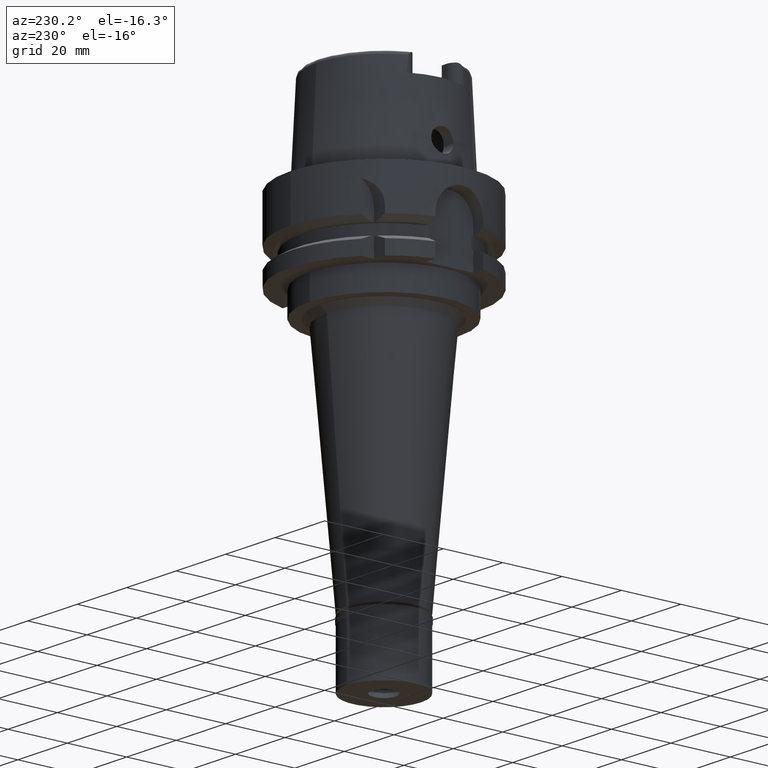
[diagram: clean part render]
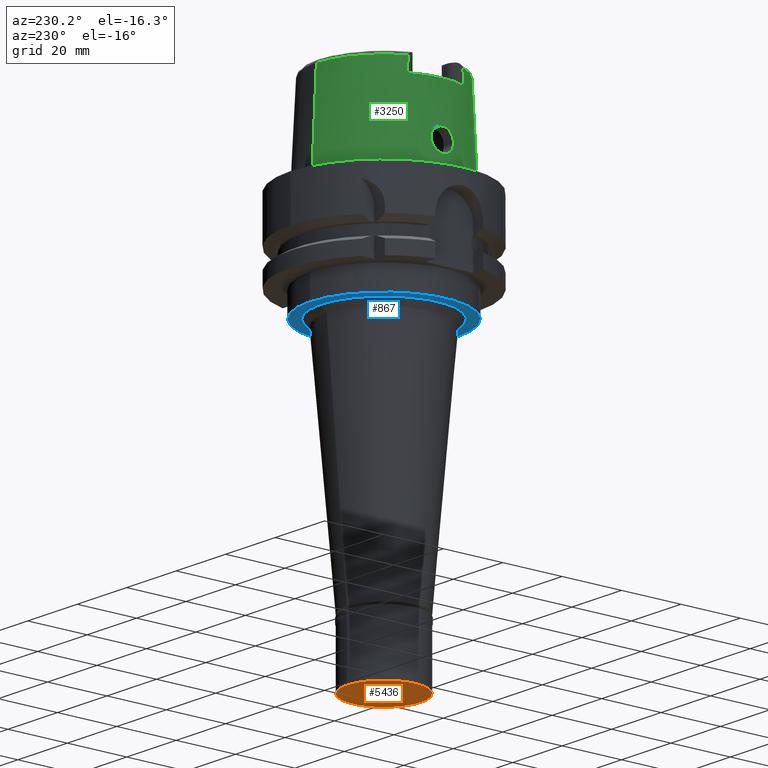
[diagram: same view with three faces highlighted in distinct colors, each labeled with its STEP entity id]
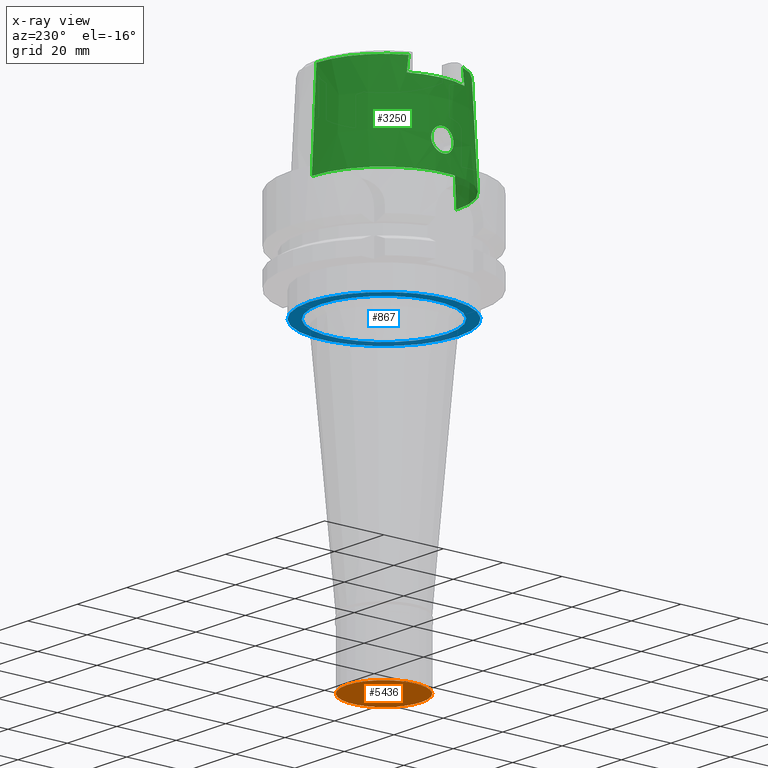
[diagram: x-ray of the same camera — body ghosted, the three highlighted faces saturated]
A machine part, auxiliary view with three faces highlighted in distinct colors.
The next image is the same camera in x-ray (body ghosted, the three faces saturated) — at least one of them is partly hidden behind the body in this view.
Their STEP definitions:

[orange] entity #5436 — the highlighted planar face has unit normal (0, 0, -1).
#112 = CARTESIAN_POINT ( 'NONE',  ( 0.0000000000000000000, 0.0000000000000000000, -20.50000000000000000 ) ) ;
#236 = ORIENTED_EDGE ( 'NONE', *, *, #1042, .F. ) ;
#251 = DIRECTION ( 'NONE',  ( 0.0000000000000000000, 0.0000000000000000000, -1.000000000000000000 ) ) ;
#304 = CIRCLE ( 'NONE', #3399, 12.50000000000000000 ) ;
#397 = AXIS2_PLACEMENT_3D ( 'NONE', #112, #3541, #5161 ) ;
#496 = CARTESIAN_POINT ( 'NONE',  ( 0.0000000000000000000, 4.050000000000999911, -20.50000000000000000 ) ) ;
#613 = DIRECTION ( 'NONE',  ( 0.0000000000000000000, 0.0000000000000000000, -1.000000000000000000 ) ) ;
#644 = ORIENTED_EDGE ( 'NONE', *, *, #1108, .F. ) ;
#669 = CIRCLE ( 'NONE', #397, 4.050000000000999911 ) ;
#857 = CARTESIAN_POINT ( 'NONE',  ( 0.0000000000000000000, -4.050000000000999911, -20.50000000000000000 ) ) ;
#977 = CARTESIAN_POINT ( 'NONE',  ( 0.0000000000000000000, 0.0000000000000000000, -20.50000000000000000 ) ) ;
#1036 = EDGE_CURVE ( 'NONE', #4117, #3602, #304, .T. ) ;
#1042 = EDGE_CURVE ( 'NONE', #1720, #3668, #669, .T. ) ;
#1062 = CARTESIAN_POINT ( 'NONE',  ( 0.0000000000000000000, 0.0000000000000000000, -20.50000000000000000 ) ) ;
#1081 = ORIENTED_EDGE ( 'NONE', *, *, #1036, .F. ) ;
#1088 = DIRECTION ( 'NONE',  ( 0.0000000000000000000, -1.000000000000000000, 0.0000000000000000000 ) ) ;
#1108 = EDGE_CURVE ( 'NONE', #3668, #1720, #5051, .T. ) ;
#1702 = AXIS2_PLACEMENT_3D ( 'NONE', #4442, #251, #5299 ) ;
#1708 = AXIS2_PLACEMENT_3D ( 'NONE', #3833, #1731, #2560 ) ;
#1720 = VERTEX_POINT ( 'NONE', #857 ) ;
#1731 = DIRECTION ( 'NONE',  ( 0.0000000000000000000, 0.0000000000000000000, 1.000000000000000000 ) ) ;
#2264 = CARTESIAN_POINT ( 'NONE',  ( 0.0000000000000000000, -12.50000000000000000, -20.50000000000000000 ) ) ;
#2560 = DIRECTION ( 'NONE',  ( 0.0000000000000000000, 1.000000000000000000, 0.0000000000000000000 ) ) ;
#2768 = PLANE ( 'NONE',  #1702 ) ;
#2800 = EDGE_LOOP ( 'NONE', ( #644, #236 ) ) ;
#2958 = AXIS2_PLACEMENT_3D ( 'NONE', #1062, #613, #3923 ) ;
#3004 = CARTESIAN_POINT ( 'NONE',  ( 0.0000000000000000000, 12.50000000000000000, -20.50000000000000000 ) ) ;
#3269 = FACE_OUTER_BOUND ( 'NONE', #3824, .T. ) ;
#3296 = CIRCLE ( 'NONE', #1708, 12.50000000000000000 ) ;
#3399 = AXIS2_PLACEMENT_3D ( 'NONE', #977, #4853, #1088 ) ;
#3541 = DIRECTION ( 'NONE',  ( 0.0000000000000000000, 0.0000000000000000000, -1.000000000000000000 ) ) ;
#3602 = VERTEX_POINT ( 'NONE', #3004 ) ;
#3668 = VERTEX_POINT ( 'NONE', #496 ) ;
#3824 = EDGE_LOOP ( 'NONE', ( #3947, #1081 ) ) ;
#3833 = CARTESIAN_POINT ( 'NONE',  ( 0.0000000000000000000, 0.0000000000000000000, -20.50000000000000000 ) ) ;
#3923 = DIRECTION ( 'NONE',  ( 0.0000000000000000000, 1.000000000000000000, 0.0000000000000000000 ) ) ;
#3947 = ORIENTED_EDGE ( 'NONE', *, *, #4542, .F. ) ;
#4117 = VERTEX_POINT ( 'NONE', #2264 ) ;
#4442 = CARTESIAN_POINT ( 'NONE',  ( 0.0000000000000000000, 0.0000000000000000000, -20.50000000000000000 ) ) ;
#4542 = EDGE_CURVE ( 'NONE', #3602, #4117, #3296, .T. ) ;
#4849 = FACE_BOUND ( 'NONE', #2800, .T. ) ;
#4853 = DIRECTION ( 'NONE',  ( 0.0000000000000000000, 0.0000000000000000000, 1.000000000000000000 ) ) ;
#5051 = CIRCLE ( 'NONE', #2958, 4.050000000000999911 ) ;
#5161 = DIRECTION ( 'NONE',  ( 0.0000000000000000000, -1.000000000000000000, 0.0000000000000000000 ) ) ;
#5299 = DIRECTION ( 'NONE',  ( 0.0000000000000000000, -1.000000000000000000, 0.0000000000000000000 ) ) ;
#5436 = ADVANCED_FACE ( 'NONE', ( #3269, #4849 ), #2768, .T. ) ;

[blue] entity #867 — the highlighted planar face has unit normal (0, 0, 1).
#6 = FACE_BOUND ( 'NONE', #5177, .T. ) ;
#174 = CARTESIAN_POINT ( 'NONE',  ( 0.0000000000000000000, -21.29786915595999730, -34.00000000000000000 ) ) ;
#524 = EDGE_LOOP ( 'NONE', ( #4132, #1740 ) ) ;
#635 = AXIS2_PLACEMENT_3D ( 'NONE', #2496, #2468, #4150 ) ;
#837 = AXIS2_PLACEMENT_3D ( 'NONE', #5411, #4519, #2014 ) ;
#838 = EDGE_CURVE ( 'NONE', #4031, #5400, #2237, .T. ) ;
#867 = ADVANCED_FACE ( 'NONE', ( #2082, #6 ), #3808, .F. ) ;
#1487 = DIRECTION ( 'NONE',  ( 0.0000000000000000000, -1.000000000000000000, 0.0000000000000000000 ) ) ;
#1511 = DIRECTION ( 'NONE',  ( 0.0000000000000000000, 0.0000000000000000000, 1.000000000000000000 ) ) ;
#1621 = EDGE_CURVE ( 'NONE', #5400, #4031, #3751, .T. ) ;
#1715 = DIRECTION ( 'NONE',  ( 1.000000000000000000, 0.0000000000000000000, 0.0000000000000000000 ) ) ;
#1739 = CARTESIAN_POINT ( 'NONE',  ( 0.0000000000000000000, 0.0000000000000000000, -34.00000000000000000 ) ) ;
#1740 = ORIENTED_EDGE ( 'NONE', *, *, #1621, .F. ) ;
#1764 = DIRECTION ( 'NONE',  ( 0.0000000000000000000, 1.000000000000000000, 0.0000000000000000000 ) ) ;
#2014 = DIRECTION ( 'NONE',  ( 0.0000000000000000000, 1.000000000000000000, 0.0000000000000000000 ) ) ;
#2082 = FACE_OUTER_BOUND ( 'NONE', #524, .T. ) ;
#2155 = AXIS2_PLACEMENT_3D ( 'NONE', #5102, #4254, #1764 ) ;
#2237 = CIRCLE ( 'NONE', #2155, 25.00000000000000000 ) ;
#2304 = CIRCLE ( 'NONE', #635, 21.29786915595999730 ) ;
#2468 = DIRECTION ( 'NONE',  ( 0.0000000000000000000, 0.0000000000000000000, -1.000000000000000000 ) ) ;
#2496 = CARTESIAN_POINT ( 'NONE',  ( 0.0000000000000000000, 0.0000000000000000000, -34.00000000000000000 ) ) ;
#2531 = VERTEX_POINT ( 'NONE', #174 ) ;
#2690 = EDGE_CURVE ( 'NONE', #2531, #4790, #2304, .T. ) ;
#2861 = CIRCLE ( 'NONE', #837, 21.29786915595999730 ) ;
#3098 = CARTESIAN_POINT ( 'NONE',  ( 0.0000000000000000000, 25.00000000000000000, -34.00000000000000000 ) ) ;
#3436 = DIRECTION ( 'NONE',  ( 0.0000000000000000000, 0.0000000000000000000, 1.000000000000000000 ) ) ;
#3558 = ORIENTED_EDGE ( 'NONE', *, *, #2690, .F. ) ;
#3615 = CARTESIAN_POINT ( 'NONE',  ( 0.0000000000000000000, 0.0000000000000000000, -34.00000000000000000 ) ) ;
#3751 = CIRCLE ( 'NONE', #4455, 25.00000000000000000 ) ;
#3808 = PLANE ( 'NONE',  #5327 ) ;
#4004 = CARTESIAN_POINT ( 'NONE',  ( 0.0000000000000000000, -25.00000000000000000, -34.00000000000000000 ) ) ;
#4031 = VERTEX_POINT ( 'NONE', #3098 ) ;
#4132 = ORIENTED_EDGE ( 'NONE', *, *, #838, .F. ) ;
#4150 = DIRECTION ( 'NONE',  ( 0.0000000000000000000, -1.000000000000000000, 0.0000000000000000000 ) ) ;
#4237 = ORIENTED_EDGE ( 'NONE', *, *, #4303, .F. ) ;
#4254 = DIRECTION ( 'NONE',  ( 0.0000000000000000000, 0.0000000000000000000, 1.000000000000000000 ) ) ;
#4303 = EDGE_CURVE ( 'NONE', #4790, #2531, #2861, .T. ) ;
#4383 = CARTESIAN_POINT ( 'NONE',  ( 0.0000000000000000000, 21.29786915595999730, -34.00000000000000000 ) ) ;
#4455 = AXIS2_PLACEMENT_3D ( 'NONE', #3615, #1511, #1487 ) ;
#4519 = DIRECTION ( 'NONE',  ( 0.0000000000000000000, 0.0000000000000000000, -1.000000000000000000 ) ) ;
#4790 = VERTEX_POINT ( 'NONE', #4383 ) ;
#5102 = CARTESIAN_POINT ( 'NONE',  ( 0.0000000000000000000, 0.0000000000000000000, -34.00000000000000000 ) ) ;
#5177 = EDGE_LOOP ( 'NONE', ( #4237, #3558 ) ) ;
#5327 = AXIS2_PLACEMENT_3D ( 'NONE', #1739, #3436, #1715 ) ;
#5400 = VERTEX_POINT ( 'NONE', #4004 ) ;
#5411 = CARTESIAN_POINT ( 'NONE',  ( 0.0000000000000000000, 0.0000000000000000000, -34.00000000000000000 ) ) ;

[green] entity #3250 — the highlighted conical surface has half-angle 2.862 deg.
#2 = CARTESIAN_POINT ( 'NONE',  ( -23.68855649572686417, -3.450350392959329326, 7.530746330599932037 ) ) ;
#5 = AXIS2_PLACEMENT_3D ( 'NONE', #2282, #4816, #264 ) ;
#8 = CARTESIAN_POINT ( 'NONE',  ( -20.86979791523000216, 9.115619747633999737, 30.82498808701999948 ) ) ;
#14 = CARTESIAN_POINT ( 'NONE',  ( -23.54014348580859206, 3.448440655340439864, 10.47345738375978463 ) ) ;
#15 = VERTEX_POINT ( 'NONE', #4648 ) ;
#27 = AXIS2_PLACEMENT_3D ( 'NONE', #1420, #5259, #2727 ) ;
#28 = CARTESIAN_POINT ( 'NONE',  ( -23.83804968213770437, -2.730138444230238104, 6.426279370771789345 ) ) ;
#39 = CARTESIAN_POINT ( 'NONE',  ( -23.54900849258929796, 3.721295030629335088, 9.478473824203449638 ) ) ;
#55 = CARTESIAN_POINT ( 'NONE',  ( -23.77366573554321150, -3.079179372792101965, 6.858788694553790144 ) ) ;
#64 = CARTESIAN_POINT ( 'NONE',  ( -23.58633424706027171, 2.612815130266215924, 11.68996907074316205 ) ) ;
#89 = CARTESIAN_POINT ( 'NONE',  ( -23.98860805336523327, 1.516805413282820370, 5.570264418987137311 ) ) ;
#120 = CARTESIAN_POINT ( 'NONE',  ( -23.54570811899809257, 3.703929906169442621, 9.598605068417711550 ) ) ;
#160 = CARTESIAN_POINT ( 'NONE',  ( -23.63968782729881468, -1.640295639470448874, 12.37324290434306029 ) ) ;
#189 = CARTESIAN_POINT ( 'NONE',  ( -23.55727397494100828, -3.089636227347550168, 11.12874586897779139 ) ) ;
#227 = CARTESIAN_POINT ( 'NONE',  ( -20.86999859286000003, -9.145656550792999440, 30.58059438467000035 ) ) ;
#244 = ORIENTED_EDGE ( 'NONE', *, *, #2335, .T. ) ;
#264 = DIRECTION ( 'NONE',  ( -0.9164655183265837390, 0.4001136759951928745, 0.0000000000000000000 ) ) ;
#315 = ORIENTED_EDGE ( 'NONE', *, *, #3787, .T. ) ;
#318 = CARTESIAN_POINT ( 'NONE',  ( -23.80252329196896355, -2.931021465767322809, 6.660040252977387887 ) ) ;
#322 = CARTESIAN_POINT ( 'NONE',  ( -23.63991982690483340, 1.634365850957417932, 12.37734992445323634 ) ) ;
#349 = CARTESIAN_POINT ( 'NONE',  ( -23.61798605459056333, 2.072660299223381131, 12.12516543794528268 ) ) ;
#413 = VERTEX_POINT ( 'NONE', #5435 ) ;
#423 = CARTESIAN_POINT ( 'NONE',  ( -23.69823410077493975, -3.412900177728301898, 7.445778019075279808 ) ) ;
#428 = CARTESIAN_POINT ( 'NONE',  ( -20.86974110889999778, 9.111383545098000525, 30.85992740062999928 ) ) ;
#432 = CARTESIAN_POINT ( 'NONE',  ( -23.77928549044682782, 3.051522805574073960, 6.816916783141987679 ) ) ;
#437 = VERTEX_POINT ( 'NONE', #1130 ) ;
#446 = CARTESIAN_POINT ( 'NONE',  ( -23.95646170837702726, -1.853837862012882809, 5.739666730202156231 ) ) ;
#457 = CARTESIAN_POINT ( 'NONE',  ( -23.53979351381236995, 3.461509763711903442, 10.44239227257004643 ) ) ;
#476 = CARTESIAN_POINT ( 'NONE',  ( -23.86590124817917768, -2.555122358245552672, 6.254839336102934411 ) ) ;
#488 = CARTESIAN_POINT ( 'NONE',  ( -23.84694261843706897, 2.674164043355204523, 6.371010975574848523 ) ) ;
#492 = VERTEX_POINT ( 'NONE', #4183 ) ;
#504 = CARTESIAN_POINT ( 'NONE',  ( -23.58283486885746782, -2.667704132461742539, 11.63551429115874036 ) ) ;
#511 = CARTESIAN_POINT ( 'NONE',  ( -23.53850050244912850, 3.633707465304310436, 9.958315797427276905 ) ) ;
#525 = CARTESIAN_POINT ( 'NONE',  ( -23.57177425104814716, -2.847066704537505988, 11.44162680371442420 ) ) ;
#533 = CARTESIAN_POINT ( 'NONE',  ( -23.56555400590840677, 3.749631139604657992, 9.060415933230707708 ) ) ;
#560 = EDGE_CURVE ( 'NONE', #437, #3338, #1625, .T. ) ;
#586 = CARTESIAN_POINT ( 'NONE',  ( -23.62817009328265527, -1.885504390004044017, 12.24383666416988170 ) ) ;
#652 = CARTESIAN_POINT ( 'NONE',  ( -24.05252611746999492, 0.4682087623268842425, 5.250000000000005329 ) ) ;
#656 = CARTESIAN_POINT ( 'NONE',  ( -20.86999859286000003, -9.150003160549998071, 30.54568941691999839 ) ) ;
#686 = CARTESIAN_POINT ( 'NONE',  ( -20.87000000000000099, 9.332993010319471594, 29.07609872775757864 ) ) ;
#695 = DIRECTION ( 'NONE',  ( 0.0000000000000000000, 0.0000000000000000000, -1.000000000000000000 ) ) ;
#707 = CARTESIAN_POINT ( 'NONE',  ( -23.93747828835355662, -2.023758500835633800, 5.842887484415648203 ) ) ;
#722 = CONICAL_SURFACE ( 'NONE', #3207, 23.54351105844999736, 0.04996004983832824653 ) ;
#731 = CARTESIAN_POINT ( 'NONE',  ( -23.98780141253777387, -1.529850488963499178, 5.574348390456109748 ) ) ;
#737 = CARTESIAN_POINT ( 'NONE',  ( -23.64876190097339048, 1.422569725464330359, 12.46970655259701921 ) ) ;
#765 = CARTESIAN_POINT ( 'NONE',  ( -23.61879524018712218, 2.057754103152230396, 12.13500044361474473 ) ) ;
#789 = CARTESIAN_POINT ( 'NONE',  ( 0.0000000000000000000, 0.0000000000000000000, 26.00000000000000000 ) ) ;
#820 = CARTESIAN_POINT ( 'NONE',  ( -23.63217384775390073, 1.797799039427432799, 12.29153530674953743 ) ) ;
#844 = CARTESIAN_POINT ( 'NONE',  ( -24.00084008237205069, -1.365466169006860353, 5.507400335312493844 ) ) ;
#850 = CARTESIAN_POINT ( 'NONE',  ( -20.86998014063999918, 9.137000168784000564, 30.65036215718999912 ) ) ;
#853 = LINE ( 'NONE', #4568, #5409 ) ;
#855 = CARTESIAN_POINT ( 'NONE',  ( -23.75810190251952747, 3.153611506438460221, 6.970771463084854958 ) ) ;
#875 = CARTESIAN_POINT ( 'NONE',  ( -23.57093098231326067, 2.851320387652085397, 11.45124733492395919 ) ) ;
#891 = CARTESIAN_POINT ( 'NONE',  ( -23.57120107787324059, -3.749755776624165815, 8.948568822382817700 ) ) ;
#903 = CARTESIAN_POINT ( 'NONE',  ( -23.59513519483810384, 3.730063048703614825, 8.542738687284348487 ) ) ;
#922 = CARTESIAN_POINT ( 'NONE',  ( -23.55631789223333428, -3.749672740654974135, 9.242517987140685065 ) ) ;
#935 = CARTESIAN_POINT ( 'NONE',  ( -23.98100747839815483, 1.604224121601369069, 5.609676872079137233 ) ) ;
#952 = CARTESIAN_POINT ( 'NONE',  ( -23.62277834053311665, -1.989116349039149023, 12.18120550145415670 ) ) ;
#959 = CARTESIAN_POINT ( 'NONE',  ( -23.65218889149405967, 3.578284045977731420, 7.876407930200151064 ) ) ;
#999 = CARTESIAN_POINT ( 'NONE',  ( -23.53967805942447100, -3.465942326589053657, 10.43170616132068851 ) ) ;
#1002 = CARTESIAN_POINT ( 'NONE',  ( -20.86979784206000232, -9.115619992199000876, 30.82498881521999934 ) ) ;
#1087 = DIRECTION ( 'NONE',  ( 0.0000000000000000000, 0.0000000000000000000, -1.000000000000000000 ) ) ;
#1130 = CARTESIAN_POINT ( 'NONE',  ( -23.67751368057999883, 0.0000000000000000000, 12.75000000000000000 ) ) ;
#1176 = CARTESIAN_POINT ( 'NONE',  ( -23.97821485496977090, -1.637234158120941085, 5.624069072311930206 ) ) ;
#1259 = CARTESIAN_POINT ( 'NONE',  ( -23.53993040577220697, 3.456309141059284329, 10.45481010227199903 ) ) ;
#1279 = CARTESIAN_POINT ( 'NONE',  ( -23.99856816874137166, -1.394885509442251870, 5.519045433788947186 ) ) ;
#1292 = CARTESIAN_POINT ( 'NONE',  ( -23.84336415999423764, 2.695641915487723139, 6.393037920339570412 ) ) ;
#1305 = CARTESIAN_POINT ( 'NONE',  ( -23.69164711139074342, -3.438544630161922910, 7.503368978167282322 ) ) ;
#1313 = CARTESIAN_POINT ( 'NONE',  ( -23.81480627636089764, 2.861180136208510305, 6.575142443498487310 ) ) ;
#1327 = CARTESIAN_POINT ( 'NONE',  ( -23.88957874108728419, -2.394968960503439881, 6.113755465787070520 ) ) ;
#1336 = CARTESIAN_POINT ( 'NONE',  ( -23.56097796872718675, 3.013422431557879033, 11.24541844973285620 ) ) ;
#1340 = B_SPLINE_CURVE_WITH_KNOTS ( 'NONE', 3,
 ( #428, #8, #2934, #850, #2523, #1686 ),
 .UNSPECIFIED., .F., .F.,
 ( 4, 1, 1, 4 ),
 ( 0.0000000000000000000, 0.3333333333333000081, 0.6666666666667000474, 1.000000000000000000 ),
 .UNSPECIFIED. ) ;
#1355 = CARTESIAN_POINT ( 'NONE',  ( -23.54167622164519003, -3.387205666513867452, 10.62142259279032430 ) ) ;
#1366 = CARTESIAN_POINT ( 'NONE',  ( -23.66129350525020314, 3.548529442283025581, 7.784314626029999573 ) ) ;
#1383 = CARTESIAN_POINT ( 'NONE',  ( -23.64574074789039670, -1.497428109160985787, 12.43819703325460857 ) ) ;
#1392 = CARTESIAN_POINT ( 'NONE',  ( -23.99475744535108745, 1.442563801230068554, 5.538561806632706919 ) ) ;
#1408 = CARTESIAN_POINT ( 'NONE',  ( -23.58328928351684084, -2.660386235629019325, 11.64289685430886223 ) ) ;
#1409 = DIRECTION ( 'NONE',  ( 0.0000000000000000000, -1.000000000000000000, 0.0000000000000000000 ) ) ;
#1420 = CARTESIAN_POINT ( 'NONE',  ( 0.0000000000000000000, 0.0000000000000000000, -7.389644451905000534E-13 ) ) ;
#1433 = CARTESIAN_POINT ( 'NONE',  ( -23.64333711421577533, -1.554903091159627104, 12.41258936274033076 ) ) ;
#1471 = FACE_BOUND ( 'NONE', #4684, .T. ) ;
#1478 = CARTESIAN_POINT ( 'NONE',  ( -24.03360035032514119, 0.9587416555076208047, 5.338922568945038805 ) ) ;
#1509 = CARTESIAN_POINT ( 'NONE',  ( 0.0000000000000000000, 22.77198729362000051, 30.85992712280000205 ) ) ;
#1539 = VERTEX_POINT ( 'NONE', #5292 ) ;
#1560 = CARTESIAN_POINT ( 'NONE',  ( -23.93346570588322564, -2.057731046173905565, 5.864986635515452740 ) ) ;
#1579 = CARTESIAN_POINT ( 'NONE',  ( -23.78102517926954462, -3.042785094255858525, 6.807340126549617842 ) ) ;
#1583 = CARTESIAN_POINT ( 'NONE',  ( -23.62000083421527918, 2.035445434004911736, 12.14960492250300206 ) ) ;
#1625 = B_SPLINE_CURVE_WITH_KNOTS ( 'NONE', 3,
 ( #2834, #4545, #1981, #5370, #2061, #3667, #3766, #3740, #4510, #2031, #737, #4106, #2910, #322, #820, #2004, #2447, #3688, #1583, #765, #349, #3711, #5141, #2577, #3419, #2631, #5057, #64, #3789, #4645, #875, #1336, #3389, #1771, #4313, #4290, #2223, #14, #1259, #457, #2610, #2940, #511, #120, #39, #2550, #3896, #3846, #533, #3466, #1722, #903, #4263, #4624, #959, #1366, #1692, #2169, #2138, #3058, #1744, #4234, #1803, #3817, #5084, #2194, #5022, #855, #2528, #4210, #4726, #432, #3869, #1313, #2116, #3028, #1292, #488, #2970, #2995, #4668, #3441, #5108, #4699, #935, #89, #2661, #5166, #1392, #2748, #1478, #652, #3580 ),
 .UNSPECIFIED., .F., .F.,
 ( 4, 2, 2, 1, 1, 1, 2, 2, 2, 2, 1, 1, 2, 2, 2, 1, 1, 2, 2, 2, 2, 1, 1, 1, 2, 2, 2, 2, 1, 2, 2, 2, 2, 1, 1, 1, 2, 2, 2, 2, 1, 1, 2, 2, 2, 1, 1, 2, 2, 2, 2, 1, 1, 1, 2, 2, 4 ),
 ( 0.0000000000000000000, 0.06250000000000180411, 0.09375000000000267841, 0.1093750000000030947, 0.1171875000000033168, 0.1210937500000034417, 0.1230468750000035943, 0.1250000000000037470, 0.1562500000000084377, 0.1718750000000107414, 0.1796875000000118794, 0.1835937500000125178, 0.1855468750000128231, 0.1875000000000131284, 0.2187500000000151823, 0.2343750000000162370, 0.2421875000000167366, 0.2460937500000169864, 0.2500000000000172085, 0.3125000000000199840, 0.3437500000000211497, 0.3593750000000219269, 0.3671875000000223155, 0.3710937500000223155, 0.3730468750000224820, 0.3750000000000226485, 0.4375000000000212053, 0.4687500000000202616, 0.4843750000000199840, 0.4921875000000198730, 0.5000000000000197620, 0.5625000000000199840, 0.5937500000000198730, 0.6093750000000196509, 0.6171875000000194289, 0.6210937500000192069, 0.6230468750000192069, 0.6250000000000192069, 0.6562500000000169864, 0.6718750000000159872, 0.6796875000000155431, 0.6835937500000154321, 0.6855468750000154321, 0.6875000000000155431, 0.7187500000000152101, 0.7343750000000150990, 0.7421875000000150990, 0.7460937500000150990, 0.7500000000000150990, 0.8125000000000134337, 0.8437500000000126565, 0.8593750000000123235, 0.8671875000000121014, 0.8710937500000118794, 0.8730468750000117684, 0.8750000000000115463, 1.000000000000000000 ),
 .UNSPECIFIED. ) ;
#1681 = VERTEX_POINT ( 'NONE', #1904 ) ;
#1682 = CARTESIAN_POINT ( 'NONE',  ( -24.05252611747000913, -0.2332103147720371306, 5.249999999999995559 ) ) ;
#1686 = CARTESIAN_POINT ( 'NONE',  ( -20.87000040551000168, 9.149999089200999691, 30.54560915661999942 ) ) ;
#1692 = CARTESIAN_POINT ( 'NONE',  ( -23.67256934594223239, 3.509037656597154609, 7.676726614362176626 ) ) ;
#1710 = ORIENTED_EDGE ( 'NONE', *, *, #2533, .F. ) ;
#1712 = CARTESIAN_POINT ( 'NONE',  ( -23.58453728877801936, -3.739856244324455403, 8.718110060412866957 ) ) ;
#1722 = CARTESIAN_POINT ( 'NONE',  ( -23.57982250564248972, 3.750067514026123039, 8.777281901709105938 ) ) ;
#1736 = CARTESIAN_POINT ( 'NONE',  ( -23.96211499764661568, -1.799536070464387905, 5.709421591823511832 ) ) ;
#1744 = CARTESIAN_POINT ( 'NONE',  ( -23.68361486062016397, 3.468774132774364194, 7.575167304624402576 ) ) ;
#1771 = CARTESIAN_POINT ( 'NONE',  ( -23.54701787177276273, 3.273004262377924523, 10.83388854690103820 ) ) ;
#1792 = CARTESIAN_POINT ( 'NONE',  ( -23.67751368057999883, 0.0000000000000000000, 12.75000000000000000 ) ) ;
#1803 = CARTESIAN_POINT ( 'NONE',  ( -23.70700908735710755, 3.379377894051271536, 7.369840515917825741 ) ) ;
#1820 = CARTESIAN_POINT ( 'NONE',  ( -23.53925035809209731, -3.484397382970594759, 10.38632955577066674 ) ) ;
#1835 = ORIENTED_EDGE ( 'NONE', *, *, #5140, .F. ) ;
#1845 = CARTESIAN_POINT ( 'NONE',  ( -23.53847087989570142, -3.572101077236516264, 10.14300631106197415 ) ) ;
#1846 = CARTESIAN_POINT ( 'NONE',  ( 0.0000000000000000000, 0.0000000000000000000, 15.42996356139999925 ) ) ;
#1854 = CARTESIAN_POINT ( 'NONE',  ( -20.86999931535000385, -9.702216590572000143, 26.00000000000000000 ) ) ;
#1860 = B_SPLINE_CURVE_WITH_KNOTS ( 'NONE', 3,
 ( #5248, #227, #2741, #4332, #1002, #3486 ),
 .UNSPECIFIED., .F., .F.,
 ( 4, 1, 1, 4 ),
 ( 0.0000000000000000000, 0.3333333333333000081, 0.6666666666667000474, 1.000000000000000000 ),
 .UNSPECIFIED. ) ;
#1864 = VERTEX_POINT ( 'NONE', #5168 ) ;
#1904 = CARTESIAN_POINT ( 'NONE',  ( -20.86974104061000190, -9.111384044299001062, 30.85992600358999738 ) ) ;
#1944 = CARTESIAN_POINT ( 'NONE',  ( -20.87000000000000099, -9.517135092919289718, 27.56041024058491118 ) ) ;
#1975 = CARTESIAN_POINT ( 'NONE',  ( -24.03376450813277287, -0.8302585185789148614, 5.341039448942981771 ) ) ;
#1981 = CARTESIAN_POINT ( 'NONE',  ( -23.67506692396758439, 0.4637167558492616415, 12.72933692533884731 ) ) ;
#1983 = ORIENTED_EDGE ( 'NONE', *, *, #2309, .F. ) ;
#2001 = CARTESIAN_POINT ( 'NONE',  ( -23.94298929834559786, -1.976175609908125352, 5.812675870300883396 ) ) ;
#2004 = CARTESIAN_POINT ( 'NONE',  ( -23.62941725488066425, 1.853914894446656803, 12.26036247288308445 ) ) ;
#2031 = CARTESIAN_POINT ( 'NONE',  ( -23.64936403248347574, 1.407275569540477056, 12.47593780961583221 ) ) ;
#2061 = CARTESIAN_POINT ( 'NONE',  ( -23.66466820836483720, 0.9480137377314733493, 12.63043733667793411 ) ) ;
#2116 = CARTESIAN_POINT ( 'NONE',  ( -23.82549564032062506, 2.800913594571911691, 6.505203384462354244 ) ) ;
#2128 = CARTESIAN_POINT ( 'NONE',  ( -24.04783571513569385, -0.4716470343275623867, 5.271818786262217671 ) ) ;
#2138 = CARTESIAN_POINT ( 'NONE',  ( -23.68089203929594433, 3.478829521360184529, 7.599887913859575406 ) ) ;
#2169 = CARTESIAN_POINT ( 'NONE',  ( -23.67837071411571515, 3.488075904215307332, 7.622935984919365637 ) ) ;
#2185 = B_SPLINE_CURVE_WITH_KNOTS ( 'NONE', 3,
 ( #4610, #1682, #2128, #1975, #3432, #4248, #2962, #4223, #844, #1279, #2542, #731, #1176, #1736, #446, #3662, #2001, #707, #3779, #1560, #3838, #4919, #2413, #1327, #3015, #3258, #476, #5366, #5100, #2860, #2518, #28, #2382, #318, #3685, #1579, #55, #3279, #5073, #3410, #4200, #423, #1305, #2, #3376, #5041, #4637, #3804, #1712, #2986, #4658, #891, #3860, #922, #2601, #3942, #2683, #1845, #4766, #4717, #1820, #3074, #5184, #999, #1355, #3485, #189, #4361, #2186, #525, #4686, #3539, #4305, #5212, #504, #1408, #2211, #4283, #5246, #3887, #3919, #3100, #952, #586, #2265, #160, #1433, #1383, #3130, #2239, #4385, #1792 ),
 .UNSPECIFIED., .F., .F.,
 ( 4, 2, 2, 1, 1, 2, 2, 2, 2, 1, 1, 2, 2, 2, 2, 1, 1, 2, 2, 2, 2, 2, 2, 1, 2, 2, 2, 2, 1, 2, 2, 2, 2, 1, 1, 1, 2, 2, 2, 2, 2, 1, 1, 2, 2, 2, 2, 2, 2, 1, 2, 2, 4 ),
 ( 0.0000000000000000000, 0.06249999999999347744, 0.09374999999999024392, 0.1093749999999886480, 0.1171874999999878292, 0.1210937499999873990, 0.1249999999999869826, 0.1562499999999839573, 0.1718749999999824307, 0.1796874999999815981, 0.1835937499999812095, 0.1855468749999809874, 0.1874999999999807931, 0.2187499999999781564, 0.2343749999999770184, 0.2421874999999763522, 0.2460937499999760469, 0.2480468749999759359, 0.2499999999999758526, 0.2812499999999740763, 0.2968749999999732436, 0.3124999999999723554, 0.3437499999999706346, 0.3593749999999697464, 0.3671874999999693023, 0.3749999999999688027, 0.4374999999999652500, 0.4687499999999633071, 0.4843749999999625300, 0.4921874999999621969, 0.4999999999999618083, 0.5624999999999620304, 0.5937499999999622524, 0.6093749999999620304, 0.6171874999999622524, 0.6210937499999620304, 0.6230468749999619194, 0.6249999999999618083, 0.6874999999999674705, 0.7187499999999702460, 0.7343749999999718003, 0.7421874999999725775, 0.7460937499999732436, 0.7480468749999733546, 0.7499999999999734657, 0.7812499999999769074, 0.7968749999999786837, 0.8124999999999804601, 0.8437499999999839018, 0.8593749999999855671, 0.8671874999999864553, 0.8749999999999872324, 1.000000000000000000 ),
 .UNSPECIFIED. ) ;
#2186 = CARTESIAN_POINT ( 'NONE',  ( -23.56910549796511134, -2.890900241431207274, 11.38948586687961573 ) ) ;
#2194 = CARTESIAN_POINT ( 'NONE',  ( -23.74548669685673730, 3.212405278429698807, 7.065045546057747927 ) ) ;
#2211 = CARTESIAN_POINT ( 'NONE',  ( -23.58900414614372565, -2.568399165508496562, 11.73511503744624740 ) ) ;
#2223 = CARTESIAN_POINT ( 'NONE',  ( -23.54069486723662763, 3.429604093074821947, 10.51710758013800984 ) ) ;
#2239 = CARTESIAN_POINT ( 'NONE',  ( -23.66770930210666180, -0.9495237184651953433, 12.66633763498284715 ) ) ;
#2257 = EDGE_CURVE ( 'NONE', #2909, #1539, #1340, .T. ) ;
#2265 = CARTESIAN_POINT ( 'NONE',  ( -23.63590703116679492, -1.723181040758277716, 12.33120441851075277 ) ) ;
#2282 = CARTESIAN_POINT ( 'NONE',  ( 0.0000000000000000000, 0.0000000000000000000, 30.85992712280000205 ) ) ;
#2309 = EDGE_CURVE ( 'NONE', #492, #15, #4045, .T. ) ;
#2335 = EDGE_CURVE ( 'NONE', #2909, #2373, #2383, .T. ) ;
#2373 = VERTEX_POINT ( 'NONE', #1509 ) ;
#2382 = CARTESIAN_POINT ( 'NONE',  ( -23.82389824345340301, -2.813305834487396684, 6.517460154692584773 ) ) ;
#2383 = CIRCLE ( 'NONE', #5, 22.77198729362000407 ) ;
#2384 = CARTESIAN_POINT ( 'NONE',  ( -20.87000040551000168, 9.149999089200999691, 30.54560915661999942 ) ) ;
#2413 = CARTESIAN_POINT ( 'NONE',  ( -23.90951355816619994, -2.251041480584769605, 5.998259240893296429 ) ) ;
#2447 = CARTESIAN_POINT ( 'NONE',  ( -23.62502046583643533, 1.940137780693630409, 12.20928050574175749 ) ) ;
#2518 = CARTESIAN_POINT ( 'NONE',  ( -23.85298089870701688, -2.637218653448960559, 6.333984785360399883 ) ) ;
#2523 = CARTESIAN_POINT ( 'NONE',  ( -20.87000040551000168, 9.145652229695999225, 30.58051608323999915 ) ) ;
#2528 = CARTESIAN_POINT ( 'NONE',  ( -23.76110843537001216, 3.139261242085306769, 6.948752512118193003 ) ) ;
#2533 = EDGE_CURVE ( 'NONE', #1539, #1864, #5014, .T. ) ;
#2542 = CARTESIAN_POINT ( 'NONE',  ( -23.99729627407341326, -1.411048636287077107, 5.525572656864369492 ) ) ;
#2550 = CARTESIAN_POINT ( 'NONE',  ( -23.55530580508843030, 3.738557622454173668, 9.298840057469559994 ) ) ;
#2577 = CARTESIAN_POINT ( 'NONE',  ( -23.60596804538357674, 2.288649008141941277, 11.97316702082432727 ) ) ;
#2583 = CIRCLE ( 'NONE', #3301, 22.77198729362000051 ) ;
#2598 = ORIENTED_EDGE ( 'NONE', *, *, #5348, .F. ) ;
#2601 = CARTESIAN_POINT ( 'NONE',  ( -23.54795032193746707, -3.726728752182754789, 9.483762062742966847 ) ) ;
#2610 = CARTESIAN_POINT ( 'NONE',  ( -23.53973866395645942, 3.463642749354777894, 10.43726852335694844 ) ) ;
#2631 = CARTESIAN_POINT ( 'NONE',  ( -23.59335060317420485, 2.500906294507003302, 11.79545910480701743 ) ) ;
#2639 = B_SPLINE_CURVE_WITH_KNOTS ( 'NONE', 3,
 ( #5196, #1944, #3233, #656 ),
 .UNSPECIFIED., .F., .F.,
 ( 4, 4 ),
 ( 0.0000000000000000000, 1.000000000000000000 ),
 .UNSPECIFIED. ) ;
#2661 = CARTESIAN_POINT ( 'NONE',  ( -23.99223591123744015, 1.473417737953618412, 5.551543009066916667 ) ) ;
#2683 = CARTESIAN_POINT ( 'NONE',  ( -23.53933400710885948, -3.626018558687768678, 9.964348248579810274 ) ) ;
#2727 = DIRECTION ( 'NONE',  ( 0.0000000000000000000, 1.000000000000000000, 0.0000000000000000000 ) ) ;
#2741 = CARTESIAN_POINT ( 'NONE',  ( -20.86998097500999805, -9.136997528986000816, 30.65032563407000055 ) ) ;
#2748 = CARTESIAN_POINT ( 'NONE',  ( -23.99515738581214208, 1.437624465033390031, 5.536504739939318576 ) ) ;
#2834 = CARTESIAN_POINT ( 'NONE',  ( -23.67751368057999883, 0.0000000000000000000, 12.75000000000000000 ) ) ;
#2860 = CARTESIAN_POINT ( 'NONE',  ( -23.85411257870118718, -2.630145024456551628, 6.327002802073015353 ) ) ;
#2909 = VERTEX_POINT ( 'NONE', #3226 ) ;
#2910 = CARTESIAN_POINT ( 'NONE',  ( -23.64438541371377411, 1.532003910395872914, 12.42430358831595250 ) ) ;
#2934 = CARTESIAN_POINT ( 'NONE',  ( -20.86989333338000208, 9.124126689042000748, 30.75511924107999917 ) ) ;
#2940 = CARTESIAN_POINT ( 'NONE',  ( -23.53728676371603612, 3.562651700364320106, 10.19724764933897987 ) ) ;
#2962 = CARTESIAN_POINT ( 'NONE',  ( -24.01163167211778315, -1.217836282258121461, 5.452284111518749476 ) ) ;
#2970 = CARTESIAN_POINT ( 'NONE',  ( -23.84848511269515114, 2.664860190769112069, 6.361567375898035337 ) ) ;
#2986 = CARTESIAN_POINT ( 'NONE',  ( -23.57913311665565459, -3.745728662664435937, 8.805507684926382694 ) ) ;
#2995 = CARTESIAN_POINT ( 'NONE',  ( -23.88313561349912817, 2.454459664620678438, 6.151034554040488267 ) ) ;
#3015 = CARTESIAN_POINT ( 'NONE',  ( -23.88257951421882908, -2.443795280051599406, 6.154875096797558065 ) ) ;
#3028 = CARTESIAN_POINT ( 'NONE',  ( -23.83799877289843394, 2.727655428682778549, 6.426276565142946318 ) ) ;
#3034 = AXIS2_PLACEMENT_3D ( 'NONE', #789, #5020, #3336 ) ;
#3058 = CARTESIAN_POINT ( 'NONE',  ( -23.68258070597932274, 3.472606628673525542, 7.584524145406817297 ) ) ;
#3074 = CARTESIAN_POINT ( 'NONE',  ( -23.53944903743410677, -3.475538857237018942, 10.40825844922596843 ) ) ;
#3083 = ORIENTED_EDGE ( 'NONE', *, *, #560, .F. ) ;
#3100 = CARTESIAN_POINT ( 'NONE',  ( -23.61434002016863687, -2.137343269129500456, 12.08185038946264811 ) ) ;
#3130 = CARTESIAN_POINT ( 'NONE',  ( -23.64687499785082281, -1.469739467175905423, 12.45013971467196967 ) ) ;
#3207 = AXIS2_PLACEMENT_3D ( 'NONE', #1846, #1087, #1409 ) ;
#3226 = CARTESIAN_POINT ( 'NONE',  ( -20.86974110889999778, 9.111383545098000525, 30.85992740062999928 ) ) ;
#3233 = CARTESIAN_POINT ( 'NONE',  ( -20.87000000000000099, -9.333063949578622953, 29.07564004622490472 ) ) ;
#3240 = EDGE_CURVE ( 'NONE', #413, #1681, #1860, .T. ) ;
#3250 = ADVANCED_FACE ( 'NONE', ( #3540, #1471 ), #722, .T. ) ;
#3258 = CARTESIAN_POINT ( 'NONE',  ( -23.87154924215293050, -2.517874083617896108, 6.220808953948716358 ) ) ;
#3279 = CARTESIAN_POINT ( 'NONE',  ( -23.75247688665038126, -3.179994171885301313, 7.008853866645744723 ) ) ;
#3301 = AXIS2_PLACEMENT_3D ( 'NONE', #3620, #695, #5353 ) ;
#3332 = ORIENTED_EDGE ( 'NONE', *, *, #4161, .T. ) ;
#3336 = DIRECTION ( 'NONE',  ( -0.9068002397791221636, -0.4215605829967106200, 0.0000000000000000000 ) ) ;
#3338 = VERTEX_POINT ( 'NONE', #4801 ) ;
#3361 = DIRECTION ( 'NONE',  ( -8.032179027593385064E-05, 0.04993928193351242217, -0.9987522523971473776 ) ) ;
#3376 = CARTESIAN_POINT ( 'NONE',  ( -23.65754809391069102, -3.566088188124873604, 7.809427656172730714 ) ) ;
#3389 = CARTESIAN_POINT ( 'NONE',  ( -23.55001240182656019, 3.213465957018842634, 10.93679277013190543 ) ) ;
#3410 = CARTESIAN_POINT ( 'NONE',  ( -23.71825004763110556, -3.331225362884292274, 7.276845018410305954 ) ) ;
#3419 = CARTESIAN_POINT ( 'NONE',  ( -23.59755753211466356, 2.431116186414328695, 11.85586382592043009 ) ) ;
#3432 = CARTESIAN_POINT ( 'NONE',  ( -24.02790150521490276, -0.9499384788487387210, 5.370183118793741883 ) ) ;
#3441 = CARTESIAN_POINT ( 'NONE',  ( -23.94785021105355938, 1.936136058454497544, 5.786113297736380723 ) ) ;
#3466 = CARTESIAN_POINT ( 'NONE',  ( -23.56707887070782448, 3.749991367895448846, 9.029115373000292877 ) ) ;
#3485 = CARTESIAN_POINT ( 'NONE',  ( -23.54630226441305396, -3.287552103195988895, 10.82047937007957294 ) ) ;
#3486 = CARTESIAN_POINT ( 'NONE',  ( -20.86974104061000190, -9.111384044299001062, 30.85992600358999738 ) ) ;
#3520 = ORIENTED_EDGE ( 'NONE', *, *, #2257, .F. ) ;
#3539 = CARTESIAN_POINT ( 'NONE',  ( -23.57822001618236030, -2.742193815967354009, 11.55833520910875123 ) ) ;
#3540 = FACE_OUTER_BOUND ( 'NONE', #4372, .T. ) ;
#3580 = CARTESIAN_POINT ( 'NONE',  ( -24.05252611746999847, 7.219293415727999012E-14, 5.250000000000000000 ) ) ;
#3620 = CARTESIAN_POINT ( 'NONE',  ( 0.0000000000000000000, 0.0000000000000000000, 30.85992712280000205 ) ) ;
#3662 = CARTESIAN_POINT ( 'NONE',  ( -23.94755176922988227, -1.935381427068293858, 5.787867422730672118 ) ) ;
#3667 = CARTESIAN_POINT ( 'NONE',  ( -23.65916300598690469, 1.131583512631368693, 12.57576496425017076 ) ) ;
#3685 = CARTESIAN_POINT ( 'NONE',  ( -23.79537367589782093, -2.969088110286403737, 6.708534476842169525 ) ) ;
#3688 = CARTESIAN_POINT ( 'NONE',  ( -23.62275659638072156, 1.983760325099657384, 12.18265870488912483 ) ) ;
#3711 = CARTESIAN_POINT ( 'NONE',  ( -23.61751856524482562, 2.081228755270007724, 12.11946245286956092 ) ) ;
#3727 = EDGE_CURVE ( 'NONE', #2373, #4130, #853, .T. ) ;
#3740 = CARTESIAN_POINT ( 'NONE',  ( -23.65230061830052222, 1.330755446689140920, 12.50620537749642658 ) ) ;
#3766 = CARTESIAN_POINT ( 'NONE',  ( -23.65618102136552992, 1.223519750505068338, 12.54583135852419495 ) ) ;
#3779 = CARTESIAN_POINT ( 'NONE',  ( -23.93507611393689061, -2.044143431529040544, 5.856110134686432822 ) ) ;
#3787 = EDGE_CURVE ( 'NONE', #3849, #1864, #4253, .T. ) ;
#3789 = CARTESIAN_POINT ( 'NONE',  ( -23.58493054382509868, 2.634790026816673514, 11.66844861691025770 ) ) ;
#3804 = CARTESIAN_POINT ( 'NONE',  ( -23.59610439637909707, -3.723762417162024718, 8.541698652037885253 ) ) ;
#3817 = CARTESIAN_POINT ( 'NONE',  ( -23.72722775101787107, 3.293854948502682234, 7.206456495701663023 ) ) ;
#3838 = CARTESIAN_POINT ( 'NONE',  ( -23.93249533362292425, -2.065864036310345764, 5.870343702718422207 ) ) ;
#3846 = CARTESIAN_POINT ( 'NONE',  ( -23.56278152568586748, 3.748202034570402130, 9.119855229854037404 ) ) ;
#3849 = VERTEX_POINT ( 'NONE', #1854 ) ;
#3860 = CARTESIAN_POINT ( 'NONE',  ( -23.56979082169770479, -3.750036984073201296, 8.975438790294598235 ) ) ;
#3869 = CARTESIAN_POINT ( 'NONE',  ( -23.79346435753645039, 2.978198942466364851, 6.717901223934700461 ) ) ;
#3887 = CARTESIAN_POINT ( 'NONE',  ( -23.60568936848373411, -2.287291636353822710, 11.97229778212343021 ) ) ;
#3896 = CARTESIAN_POINT ( 'NONE',  ( -23.55879114936609398, 3.744994026490261696, 9.209162913291212504 ) ) ;
#3919 = CARTESIAN_POINT ( 'NONE',  ( -23.61138185679438806, -2.188928556155882887, 12.04546366115166833 ) ) ;
#3942 = CARTESIAN_POINT ( 'NONE',  ( -23.54081151700241747, -3.655755771881038285, 9.844368383930982347 ) ) ;
#4045 = LINE ( 'NONE', #4840, #4586 ) ;
#4106 = CARTESIAN_POINT ( 'NONE',  ( -23.64838805045087611, 1.431974298332025830, 12.46583181919457317 ) ) ;
#4130 = VERTEX_POINT ( 'NONE', #5126 ) ;
#4161 = EDGE_CURVE ( 'NONE', #492, #1681, #2583, .T. ) ;
#4183 = CARTESIAN_POINT ( 'NONE',  ( 0.0000000000000000000, -22.77198729362000051, 30.85992712280000205 ) ) ;
#4200 = CARTESIAN_POINT ( 'NONE',  ( -23.70816558059193824, -3.373465490036487768, 7.360148671504706641 ) ) ;
#4210 = CARTESIAN_POINT ( 'NONE',  ( -23.76312380669314095, 3.129601873896465936, 6.934045132752378215 ) ) ;
#4223 = CARTESIAN_POINT ( 'NONE',  ( -24.00419298716570893, -1.321282608956435567, 5.490234096219871240 ) ) ;
#4234 = CARTESIAN_POINT ( 'NONE',  ( -23.69494003770484980, 3.426640080082764772, 7.473094819701434410 ) ) ;
#4248 = CARTESIAN_POINT ( 'NONE',  ( -24.01734809996272091, -1.128669461453149392, 5.423343925821927591 ) ) ;
#4253 = CIRCLE ( 'NONE', #3034, 23.01499170873999134 ) ;
#4258 = CIRCLE ( 'NONE', #27, 24.31503482328999866 ) ;
#4263 = CARTESIAN_POINT ( 'NONE',  ( -23.62408174917873538, 3.661711994855490371, 8.181858917677363507 ) ) ;
#4283 = CARTESIAN_POINT ( 'NONE',  ( -23.59448743840532714, -2.477563781720078850, 11.81765971134296400 ) ) ;
#4290 = CARTESIAN_POINT ( 'NONE',  ( -23.54201440879856833, 3.389992891939061170, 10.60493564318824156 ) ) ;
#4305 = CARTESIAN_POINT ( 'NONE',  ( -23.58088597815305221, -2.699121719847545897, 11.60342152301987895 ) ) ;
#4313 = CARTESIAN_POINT ( 'NONE',  ( -23.54351706506169961, 3.352611893027606094, 10.68100997044322931 ) ) ;
#4332 = CARTESIAN_POINT ( 'NONE',  ( -20.86989311876999764, -9.124126494649999586, 30.75512926206999609 ) ) ;
#4361 = CARTESIAN_POINT ( 'NONE',  ( -23.56160331951304343, -3.015592931827479894, 11.23304431778905155 ) ) ;
#4372 = EDGE_LOOP ( 'NONE', ( #1710, #3520, #244, #5080, #5162, #1983, #3332, #4874, #1835, #315 ) ) ;
#4385 = CARTESIAN_POINT ( 'NONE',  ( -23.67751368057999883, -0.4544753472533653582, 12.74999999999999645 ) ) ;
#4510 = CARTESIAN_POINT ( 'NONE',  ( -23.65026006151634519, 1.384329083230096735, 12.48519848288893108 ) ) ;
#4545 = CARTESIAN_POINT ( 'NONE',  ( -23.67751368058000594, 0.2270550857726859884, 12.75000000000000533 ) ) ;
#4568 = CARTESIAN_POINT ( 'NONE',  ( 0.002481821280839999633, 22.77198688789000158, 30.85992712280000205 ) ) ;
#4586 = VECTOR ( 'NONE', #4786, 1000.000000000000000 ) ;
#4610 = CARTESIAN_POINT ( 'NONE',  ( -24.05252611746999847, 7.219293415727999012E-14, 5.250000000000000000 ) ) ;
#4624 = CARTESIAN_POINT ( 'NONE',  ( -23.63472685405014673, 3.632543205197422687, 8.060088687993642864 ) ) ;
#4637 = CARTESIAN_POINT ( 'NONE',  ( -23.60482748592163915, -3.707231853301246716, 8.421927028695852968 ) ) ;
#4645 = CARTESIAN_POINT ( 'NONE',  ( -23.58431385962907001, 2.644393340225663636, 11.65894364169481001 ) ) ;
#4648 = CARTESIAN_POINT ( 'NONE',  ( 0.0000000000000000000, -24.31503482328999866, -3.410605131648000255E-13 ) ) ;
#4658 = CARTESIAN_POINT ( 'NONE',  ( -23.57429801705057315, -3.748539602299638673, 8.891536179540501905 ) ) ;
#4668 = CARTESIAN_POINT ( 'NONE',  ( -23.91154385140678329, 2.246415865065841011, 5.987214237865722488 ) ) ;
#4684 = EDGE_LOOP ( 'NONE', ( #3083, #2598 ) ) ;
#4686 = CARTESIAN_POINT ( 'NONE',  ( -23.57602942107120114, -2.777746268199632773, 11.51949067009161709 ) ) ;
#4699 = CARTESIAN_POINT ( 'NONE',  ( -23.97390151261606306, 1.680141703375805928, 5.646953479435094181 ) ) ;
#4717 = CARTESIAN_POINT ( 'NONE',  ( -23.53886077267471677, -3.504554062484786403, 10.33504077017632028 ) ) ;
#4726 = CARTESIAN_POINT ( 'NONE',  ( -23.76427259038199580, 3.124070705848816853, 6.925694964527155051 ) ) ;
#4766 = CARTESIAN_POINT ( 'NONE',  ( -23.53837760069590956, -3.542815971460520519, 10.23200643824175771 ) ) ;
#4786 = DIRECTION ( 'NONE',  ( 8.032179027582384478E-05, -0.04993928193351242217, -0.9987522523971473776 ) ) ;
#4801 = CARTESIAN_POINT ( 'NONE',  ( -24.05252611746999847, 7.219293415727999012E-14, 5.250000000000000000 ) ) ;
#4816 = DIRECTION ( 'NONE',  ( 0.0000000000000000000, 0.0000000000000000000, -1.000000000000000000 ) ) ;
#4840 = CARTESIAN_POINT ( 'NONE',  ( -0.002481821280835999795, -22.77198688789000158, 30.85992712280000205 ) ) ;
#4874 = ORIENTED_EDGE ( 'NONE', *, *, #3240, .F. ) ;
#4919 = CARTESIAN_POINT ( 'NONE',  ( -23.92138628485024654, -2.158527707508343774, 5.931742582767137506 ) ) ;
#5014 = B_SPLINE_CURVE_WITH_KNOTS ( 'NONE', 3,
 ( #2384, #686, #5260, #5314 ),
 .UNSPECIFIED., .F., .F.,
 ( 4, 4 ),
 ( 0.0000000000000000000, 1.000000000000000000 ),
 .UNSPECIFIED. ) ;
#5020 = DIRECTION ( 'NONE',  ( 0.0000000000000000000, 0.0000000000000000000, -1.000000000000000000 ) ) ;
#5022 = CARTESIAN_POINT ( 'NONE',  ( -23.75120232814141730, 3.186135203580410025, 7.021841445990688158 ) ) ;
#5041 = CARTESIAN_POINT ( 'NONE',  ( -23.63403180797471137, -3.638172714772358596, 8.058116358236782517 ) ) ;
#5057 = CARTESIAN_POINT ( 'NONE',  ( -23.58843959287477787, 2.579654212978623296, 11.72204698607131057 ) ) ;
#5073 = CARTESIAN_POINT ( 'NONE',  ( -23.73862296467234501, -3.243267977579971983, 7.113464852909392455 ) ) ;
#5080 = ORIENTED_EDGE ( 'NONE', *, *, #3727, .T. ) ;
#5084 = CARTESIAN_POINT ( 'NONE',  ( -23.73431982043517152, 3.262906292773198214, 7.150587073842929797 ) ) ;
#5100 = CARTESIAN_POINT ( 'NONE',  ( -23.85610595830977942, -2.617617343341510416, 6.314733474375997524 ) ) ;
#5108 = CARTESIAN_POINT ( 'NONE',  ( -23.95890133140002831, 1.832950945958871536, 5.726472960293683023 ) ) ;
#5126 = CARTESIAN_POINT ( 'NONE',  ( 0.0000000000000000000, 24.31503482328999866, -7.389644451905000534E-13 ) ) ;
#5140 = EDGE_CURVE ( 'NONE', #3849, #413, #2639, .T. ) ;
#5141 = CARTESIAN_POINT ( 'NONE',  ( -23.61157059474679087, 2.189819446289465343, 12.04669119026533153 ) ) ;
#5162 = ORIENTED_EDGE ( 'NONE', *, *, #5183, .T. ) ;
#5166 = CARTESIAN_POINT ( 'NONE',  ( -23.99375375826596724, 1.454895484300799069, 5.543726889135886182 ) ) ;
#5168 = CARTESIAN_POINT ( 'NONE',  ( -20.87000000000000099, 9.702213322398998585, 26.00000000000000000 ) ) ;
#5183 = EDGE_CURVE ( 'NONE', #4130, #15, #4258, .T. ) ;
#5184 = CARTESIAN_POINT ( 'NONE',  ( -23.53958853792059358, -3.469584282979953027, 10.42286580930150564 ) ) ;
#5196 = CARTESIAN_POINT ( 'NONE',  ( -20.86999931535000385, -9.702216590572000143, 26.00000000000000000 ) ) ;
#5212 = CARTESIAN_POINT ( 'NONE',  ( -23.58205216207072041, -2.680317364806204861, 11.62268559708817861 ) ) ;
#5246 = CARTESIAN_POINT ( 'NONE',  ( -23.60286927383453559, -2.335576044566722409, 11.93450876219516132 ) ) ;
#5248 = CARTESIAN_POINT ( 'NONE',  ( -20.86999859286000003, -9.150003160549998071, 30.54568941691999839 ) ) ;
#5259 = DIRECTION ( 'NONE',  ( 0.0000000000000000000, 0.0000000000000000000, 1.000000000000000000 ) ) ;
#5260 = CARTESIAN_POINT ( 'NONE',  ( -20.87000000000000099, 9.517059732219138368, 27.56089567555091335 ) ) ;
#5292 = CARTESIAN_POINT ( 'NONE',  ( -20.87000040551000168, 9.149999089200999691, 30.54560915661999942 ) ) ;
#5314 = CARTESIAN_POINT ( 'NONE',  ( -20.87000000000000099, 9.702213322398998585, 26.00000000000000000 ) ) ;
#5348 = EDGE_CURVE ( 'NONE', #3338, #437, #2185, .T. ) ;
#5353 = DIRECTION ( 'NONE',  ( 0.0000000000000000000, -1.000000000000000000, 0.0000000000000000000 ) ) ;
#5366 = CARTESIAN_POINT ( 'NONE',  ( -23.85907942048005381, -2.598838323005613571, 6.296470842413181224 ) ) ;
#5370 = CARTESIAN_POINT ( 'NONE',  ( -23.66772665413034815, 0.8260456026948906905, 12.65995497859689678 ) ) ;
#5409 = VECTOR ( 'NONE', #3361, 1000.000000000000000 ) ;
#5435 = CARTESIAN_POINT ( 'NONE',  ( -20.86999859286000003, -9.150003160549998071, 30.54568941691999839 ) ) ;